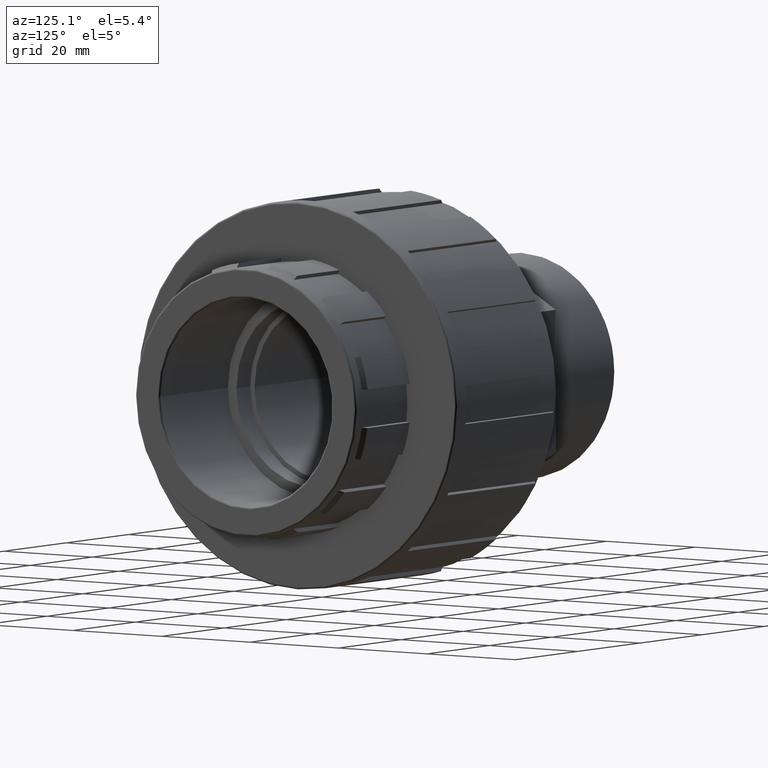
[diagram: clean part render]
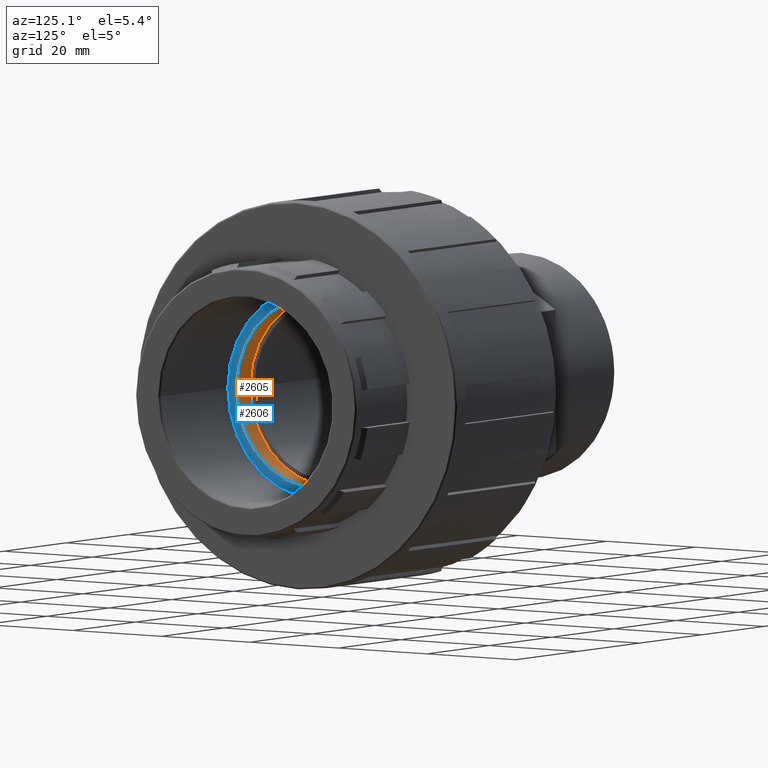
[diagram: same view with the hole feature highlighted: cylindrical wall and planar end face, labeled with their STEP entity ids]
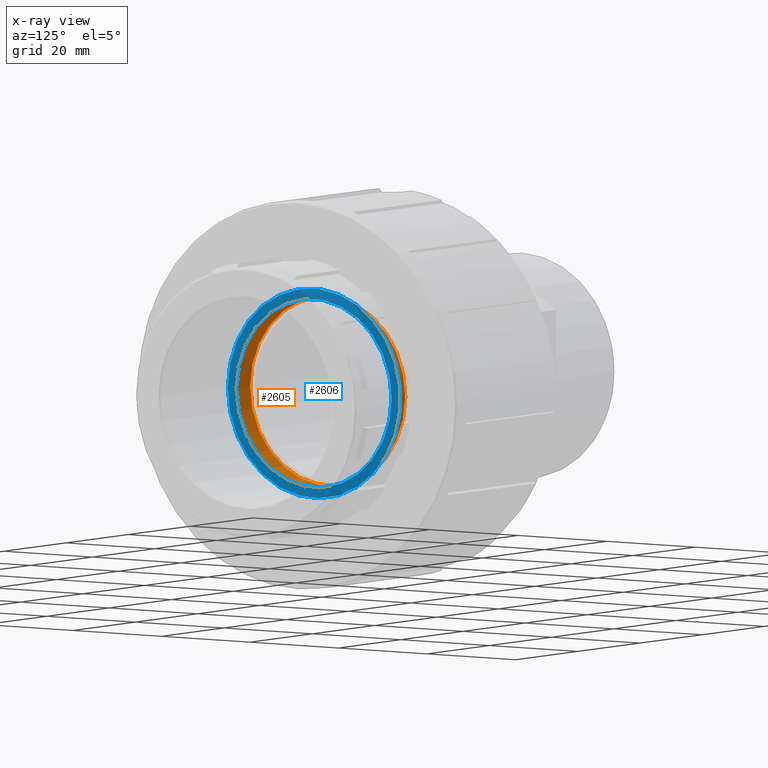
[diagram: x-ray of the same camera — body ghosted, the hole faces saturated]
A machine part, auxiliary view. The highlighted faces form one hole feature of diameter 35.0568 mm: the cylindrical wall (entity #2605, orange) and its adjacent planar end face (entity #2606, blue) — they share a circular edge in the B-rep.
The next image is the same camera in x-ray (body ghosted, the hole faces saturated) — the bore reads through the body.
Wall:
#68=FACE_BOUND('',#519,.T.);
#90=CYLINDRICAL_SURFACE('',#2877,17.5284);
#220=CIRCLE('',#2876,17.5284);
#221=CIRCLE('',#2878,17.5284);
#359=FACE_OUTER_BOUND('',#518,.T.);
#518=EDGE_LOOP('',(#2371));
#519=EDGE_LOOP('',(#2372));
#1261=VERTEX_POINT('',#4429);
#1262=VERTEX_POINT('',#4432);
#1634=EDGE_CURVE('',#1261,#1261,#220,.T.);
#1635=EDGE_CURVE('',#1262,#1262,#221,.T.);
#2371=ORIENTED_EDGE('',*,*,#1634,.T.);
#2372=ORIENTED_EDGE('',*,*,#1635,.F.);
#2605=ADVANCED_FACE('',(#359,#68),#90,.F.);
#2876=AXIS2_PLACEMENT_3D('',#4430,#3657,#3658);
#2877=AXIS2_PLACEMENT_3D('',#4431,#3659,#3660);
#2878=AXIS2_PLACEMENT_3D('',#4433,#3661,#3662);
#3657=DIRECTION('center_axis',(-1.,-1.83697019872103E-16,0.));
#3658=DIRECTION('ref_axis',(0.,0.,1.));
#3659=DIRECTION('center_axis',(-1.,-1.83697019872103E-16,0.));
#3660=DIRECTION('ref_axis',(1.58943883267739E-16,-1.,0.));
#3661=DIRECTION('center_axis',(-1.,-1.83697019872103E-16,0.));
#3662=DIRECTION('ref_axis',(0.,0.,1.));
#4429=CARTESIAN_POINT('',(18.1,-17.5284,0.));
#4430=CARTESIAN_POINT('Origin',(18.1,1.14994334439936E-14,0.));
#4431=CARTESIAN_POINT('Origin',(20.3,1.19035668877123E-14,0.));
#4432=CARTESIAN_POINT('',(22.5,-17.5284,0.));
#4433=CARTESIAN_POINT('Origin',(22.5,1.23077003314309E-14,0.));
End face:
#69=FACE_BOUND('',#521,.T.);
#207=CIRCLE('',#2847,19.476);
#221=CIRCLE('',#2878,17.5284);
#360=FACE_OUTER_BOUND('',#520,.T.);
#520=EDGE_LOOP('',(#2373));
#521=EDGE_LOOP('',(#2374));
#1248=VERTEX_POINT('',#4384);
#1262=VERTEX_POINT('',#4432);
#1618=EDGE_CURVE('',#1248,#1248,#207,.T.);
#1635=EDGE_CURVE('',#1262,#1262,#221,.T.);
#2373=ORIENTED_EDGE('',*,*,#1618,.F.);
#2374=ORIENTED_EDGE('',*,*,#1635,.T.);
#2466=PLANE('',#2879);
#2606=ADVANCED_FACE('',(#360,#69),#2466,.T.);
#2847=AXIS2_PLACEMENT_3D('',#4385,#3596,#3597);
#2878=AXIS2_PLACEMENT_3D('',#4433,#3661,#3662);
#2879=AXIS2_PLACEMENT_3D('',#4434,#3663,#3664);
#3596=DIRECTION('center_axis',(-1.,-1.83697019872103E-16,0.));
#3597=DIRECTION('ref_axis',(0.,0.,1.));
#3661=DIRECTION('center_axis',(-1.,-1.83697019872103E-16,0.));
#3662=DIRECTION('ref_axis',(0.,0.,1.));
#3663=DIRECTION('center_axis',(1.,1.83697019872103E-16,0.));
#3664=DIRECTION('ref_axis',(0.,0.,-1.));
#4384=CARTESIAN_POINT('',(22.5,-19.476,0.));
#4385=CARTESIAN_POINT('Origin',(22.5,1.23077003314309E-14,0.));
#4432=CARTESIAN_POINT('',(22.5,-17.5284,0.));
#4433=CARTESIAN_POINT('Origin',(22.5,1.23077003314309E-14,0.));
#4434=CARTESIAN_POINT('Origin',(22.5,-19.476,0.));